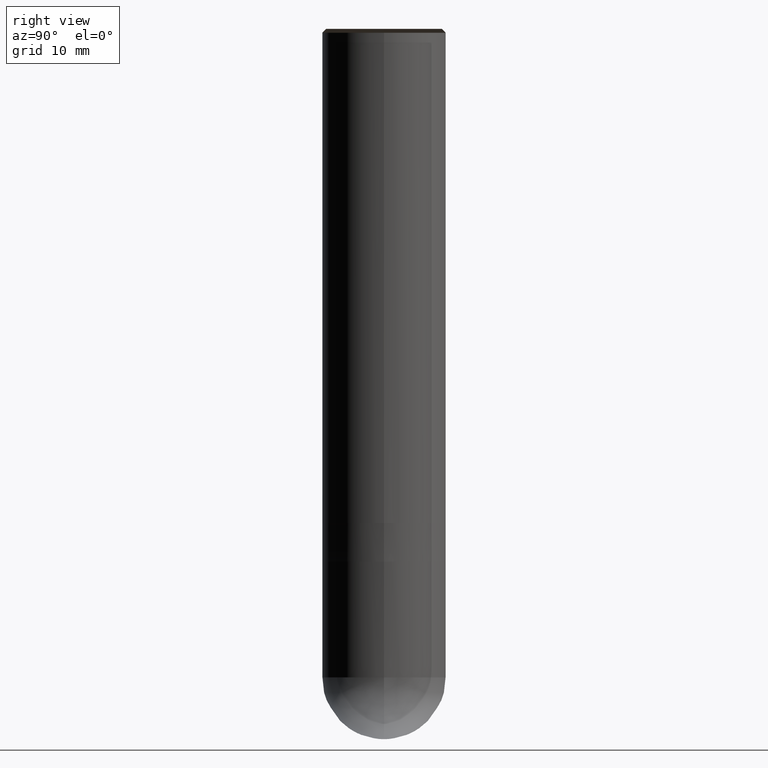
[diagram: clean part render]
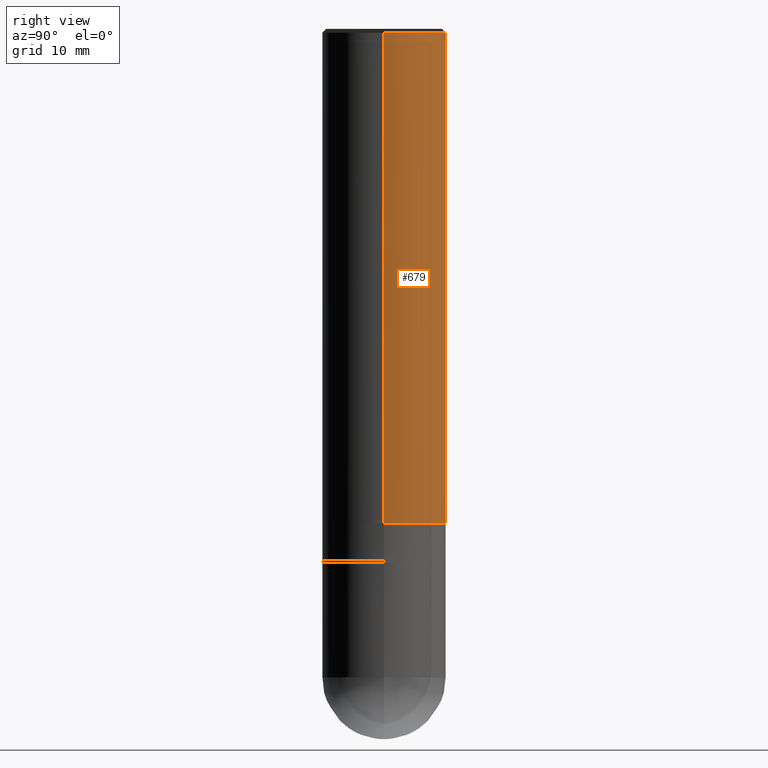
[diagram: same view with one face highlighted and labeled with its STEP entity id]
A machine part, right view. The second image highlights one B-rep face of the part: STEP entity #679.
In plain terms, the highlighted face is a freeform B-spline surface patch.
Its self-contained STEP definition (entity closure, byte-faithful):
#486=CARTESIAN_POINT('',(8.0,0.0,0.0));
#487=CARTESIAN_POINT('',(8.0,8.0,0.0));
#488=CARTESIAN_POINT('',(0.0,8.0,0.0));
#489=CARTESIAN_POINT('',(-8.0,8.0,0.0));
#490=CARTESIAN_POINT('',(-8.0,0.0,0.0));
#491=CARTESIAN_POINT('',(8.0,0.0,63.5));
#492=CARTESIAN_POINT('',(8.0,8.0,63.5));
#493=CARTESIAN_POINT('',(0.0,8.0,63.5));
#494=CARTESIAN_POINT('',(-8.0,8.0,63.5));
#495=CARTESIAN_POINT('',(-8.0,0.0,63.5));
#660=(
BOUNDED_SURFACE()
B_SPLINE_SURFACE(1,2,(
(#486,#487,#488,#489,#490),
(#491,#492,#493,#494,#495)
), .UNSPECIFIED.,.F.,.F.,.F.)
B_SPLINE_SURFACE_WITH_KNOTS((2,2),(3,2,3),(
0.0,1.0),(
0.0,0.5,1.0), .UNSPECIFIED.)
GEOMETRIC_REPRESENTATION_ITEM()
RATIONAL_B_SPLINE_SURFACE(((1.0,0.707106781187,1.0,0.707106781187,1.0),
(1.0,0.707106781187,1.0,0.707106781187,1.0)
))
REPRESENTATION_ITEM('')
SURFACE()
);
#661=(
BOUNDED_CURVE()
B_SPLINE_CURVE(2,(#490,#489,#488,#487,#486),.UNSPECIFIED.,.F.,.F.)
B_SPLINE_CURVE_WITH_KNOTS((3,2,3),
(0.0,0.5,1.0),.UNSPECIFIED.)
CURVE()
GEOMETRIC_REPRESENTATION_ITEM()
RATIONAL_B_SPLINE_CURVE((1.0,0.707106781187,1.0,0.707106781187,1.0))
REPRESENTATION_ITEM('')
);
#662=(
BOUNDED_CURVE()
B_SPLINE_CURVE(1,(#486,#491),.UNSPECIFIED.,.F.,.F.)
B_SPLINE_CURVE_WITH_KNOTS((2,2),
(0.0,1.0),.UNSPECIFIED.)
CURVE()
GEOMETRIC_REPRESENTATION_ITEM()
RATIONAL_B_SPLINE_CURVE((1.0,1.0))
REPRESENTATION_ITEM('')
);
#663=(
BOUNDED_CURVE()
B_SPLINE_CURVE(2,(#491,#492,#493,#494,#495),.UNSPECIFIED.,.F.,.F.)
B_SPLINE_CURVE_WITH_KNOTS((3,2,3),
(0.0,0.5,1.0),.UNSPECIFIED.)
CURVE()
GEOMETRIC_REPRESENTATION_ITEM()
RATIONAL_B_SPLINE_CURVE((1.0,0.707106781187,1.0,0.707106781187,1.0))
REPRESENTATION_ITEM('')
);
#664=(
BOUNDED_CURVE()
B_SPLINE_CURVE(1,(#495,#490),.UNSPECIFIED.,.F.,.F.)
B_SPLINE_CURVE_WITH_KNOTS((2,2),
(0.0,1.0),.UNSPECIFIED.)
CURVE()
GEOMETRIC_REPRESENTATION_ITEM()
RATIONAL_B_SPLINE_CURVE((1.0,1.0))
REPRESENTATION_ITEM('')
);
#665=VERTEX_POINT('',#486);
#666=VERTEX_POINT('',#490);
#667=VERTEX_POINT('',#491);
#668=VERTEX_POINT('',#495);
#669=EDGE_CURVE('',#666,#665,#661,.T.);
#670=EDGE_CURVE('',#665,#667,#662,.T.);
#671=EDGE_CURVE('',#667,#668,#663,.T.);
#672=EDGE_CURVE('',#668,#666,#664,.T.);
#673=ORIENTED_EDGE('',*,*,#669,.T.);
#674=ORIENTED_EDGE('',*,*,#670,.T.);
#675=ORIENTED_EDGE('',*,*,#671,.T.);
#676=ORIENTED_EDGE('',*,*,#672,.T.);
#677=EDGE_LOOP('',(#673,#674,#675,#676));
#678=FACE_OUTER_BOUND('',#677,.T.);
#679=ADVANCED_FACE('',(#678),#660,.T.);